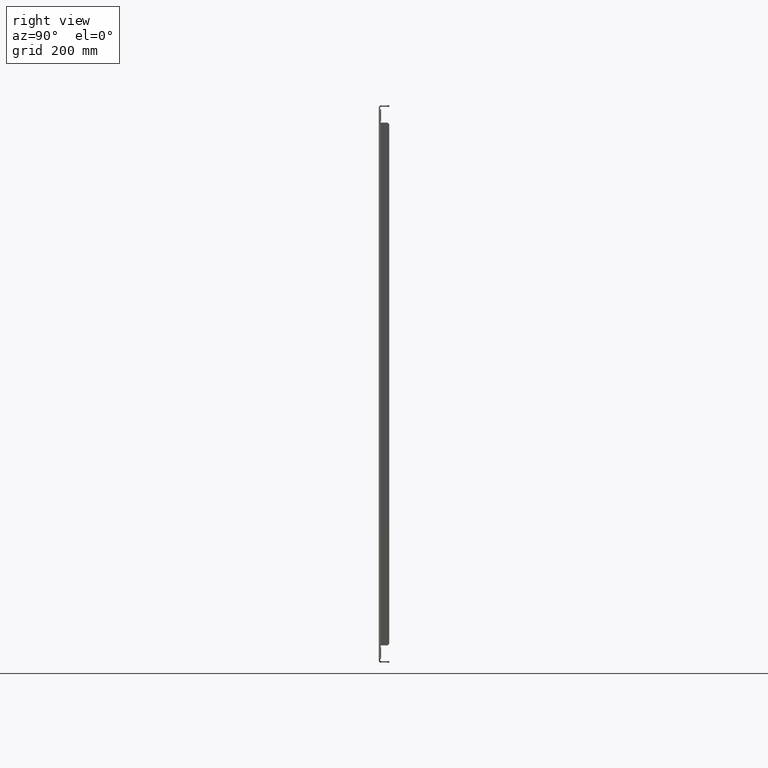
[diagram: clean part render]
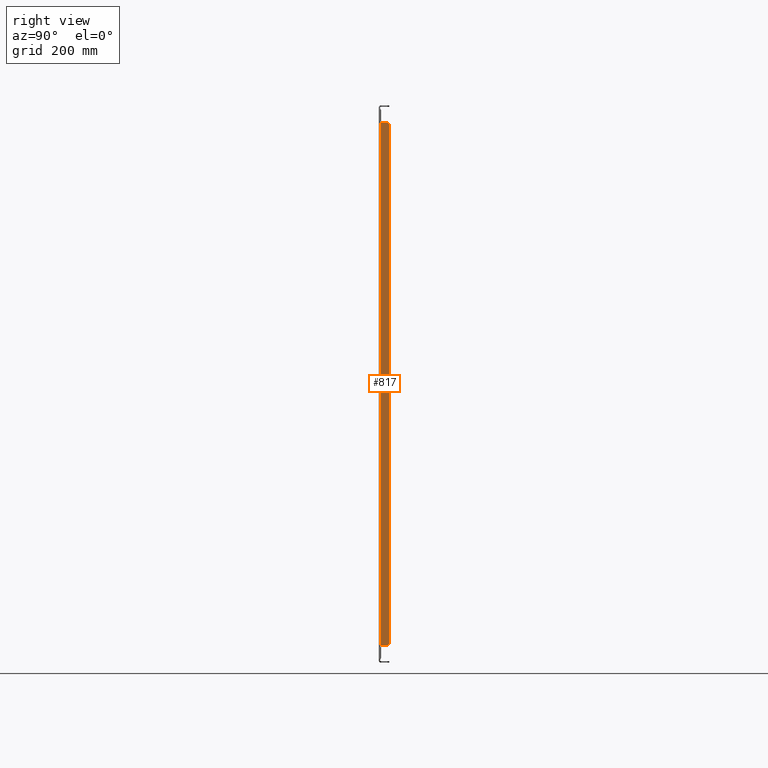
[diagram: same view with one face highlighted and labeled with its STEP entity id]
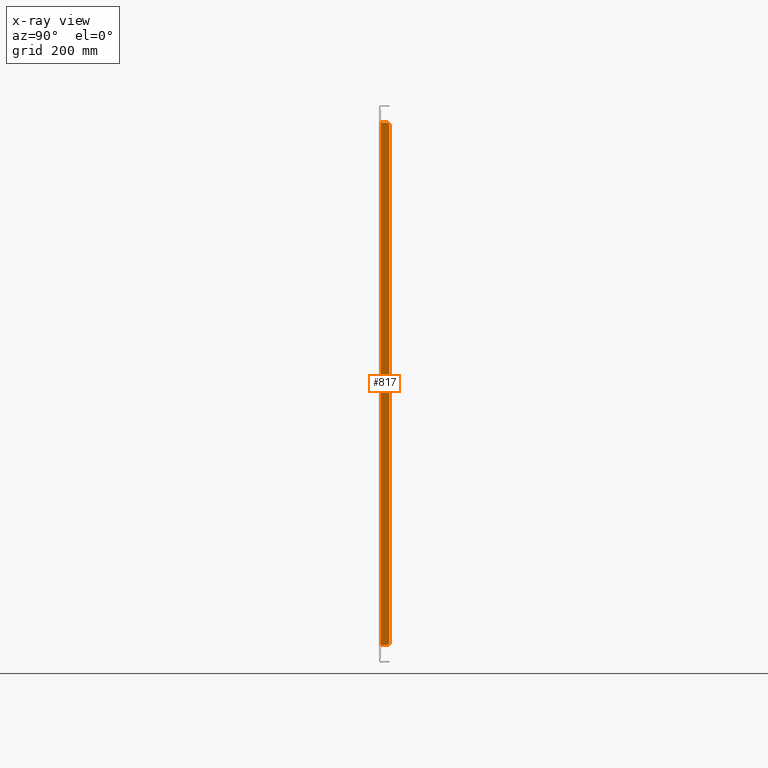
[diagram: x-ray of the same camera — body ghosted, the highlighted face saturated]
A machine part, right view. The second image highlights one B-rep face of the part: STEP entity #817.
The next image is the same camera in x-ray: the body ghosted, the highlighted face saturated — about 0% of this face is hidden behind the body in this view.
In plain terms, the highlighted planar face has unit normal (-1, 0, 0).
Its self-contained STEP definition (entity closure, byte-faithful):
#22 = DIRECTION ( 'NONE',  ( 0.0000000000000000000, 1.000000000000000000, 0.0000000000000000000 ) ) ;
#35 = PLANE ( 'NONE',  #636 ) ;
#249 = CARTESIAN_POINT ( 'NONE',  ( 17.08500000000000085, 0.6249999999999993339, -18.85000000000000142 ) ) ;
#378 = LINE ( 'NONE', #3371, #5585 ) ;
#547 = DIRECTION ( 'NONE',  ( 0.0000000000000000000, -1.000000000000000000, 0.0000000000000000000 ) ) ;
#636 = AXIS2_PLACEMENT_3D ( 'NONE', #2533, #4890, #4937 ) ;
#733 = CARTESIAN_POINT ( 'NONE',  ( 17.08500000000000085, 0.1710000000000005127, -18.85000000000000142 ) ) ;
#817 = ADVANCED_FACE ( 'NONE', ( #1196 ), #35, .F. ) ;
#942 = VERTEX_POINT ( 'NONE', #733 ) ;
#1131 = ORIENTED_EDGE ( 'NONE', *, *, #3554, .F. ) ;
#1141 = DIRECTION ( 'NONE',  ( -0.0000000000000000000, 0.7071067811865540120, 0.7071067811865410224 ) ) ;
#1196 = FACE_OUTER_BOUND ( 'NONE', #1845, .T. ) ;
#1434 = LINE ( 'NONE', #5477, #7877 ) ;
#1477 = DIRECTION ( 'NONE',  ( 0.0000000000000000000, 0.0000000000000000000, 1.000000000000000000 ) ) ;
#1741 = DIRECTION ( 'NONE',  ( -1.000000000000000000, 6.123031769111889989E-17, -0.0000000000000000000 ) ) ;
#1845 = EDGE_LOOP ( 'NONE', ( #1131, #3757, #6333, #2473, #3808, #6912, #3361, #3762 ) ) ;
#2073 = CARTESIAN_POINT ( 'NONE',  ( 17.08500000000000085, 0.7500000000000001110, 20.66399999999999793 ) ) ;
#2104 = VECTOR ( 'NONE', #1477, 39.37007874015748143 ) ;
#2271 = VECTOR ( 'NONE', #1141, 39.37007874015748143 ) ;
#2432 = CARTESIAN_POINT ( 'NONE',  ( 17.08500000000000085, 0.7500000000000001110, 18.72500000000000142 ) ) ;
#2473 = ORIENTED_EDGE ( 'NONE', *, *, #5714, .T. ) ;
#2533 = CARTESIAN_POINT ( 'NONE',  ( 17.08500000000000085, -34.57800000000000296, 20.66399999999999793 ) ) ;
#2564 = CIRCLE ( 'NONE', #4066, 0.06300000000000001432 ) ;
#2670 = CARTESIAN_POINT ( 'NONE',  ( 17.08500000000000085, 0.1710000000000005127, 18.85000000000000142 ) ) ;
#2695 = VERTEX_POINT ( 'NONE', #7671 ) ;
#2889 = EDGE_CURVE ( 'NONE', #2695, #942, #2564, .T. ) ;
#3009 = DIRECTION ( 'NONE',  ( -0.0000000000000000000, -1.000000000000000000, -0.0000000000000000000 ) ) ;
#3049 = CARTESIAN_POINT ( 'NONE',  ( 17.08500000000000085, 0.6249999999999925615, 18.85000000000000142 ) ) ;
#3077 = CARTESIAN_POINT ( 'NONE',  ( 17.08500000000000085, 0.7500000000000001110, -18.85000000000000142 ) ) ;
#3321 = DIRECTION ( 'NONE',  ( 0.0000000000000000000, -0.0000000000000000000, 1.000000000000000000 ) ) ;
#3361 = ORIENTED_EDGE ( 'NONE', *, *, #6446, .T. ) ;
#3371 = CARTESIAN_POINT ( 'NONE',  ( 17.08500000000000085, 0.1430000000000000437, -19.88800000000000168 ) ) ;
#3416 = DIRECTION ( 'NONE',  ( -1.000000000000000000, 6.123031769111889989E-17, -0.0000000000000000000 ) ) ;
#3417 = VECTOR ( 'NONE', #6129, 39.37007874015748854 ) ;
#3478 = CARTESIAN_POINT ( 'NONE',  ( 17.08500000000000085, 0.6249999999999983347, -18.85000000000000142 ) ) ;
#3554 = EDGE_CURVE ( 'NONE', #2695, #3574, #378, .T. ) ;
#3574 = VERTEX_POINT ( 'NONE', #4584 ) ;
#3611 = CARTESIAN_POINT ( 'NONE',  ( 17.08500000000000085, 0.7500000000000002220, -18.72500000000000142 ) ) ;
#3757 = ORIENTED_EDGE ( 'NONE', *, *, #2889, .T. ) ;
#3762 = ORIENTED_EDGE ( 'NONE', *, *, #4977, .T. ) ;
#3808 = ORIENTED_EDGE ( 'NONE', *, *, #6809, .T. ) ;
#4066 = AXIS2_PLACEMENT_3D ( 'NONE', #4745, #1741, #547 ) ;
#4262 = LINE ( 'NONE', #3478, #2271 ) ;
#4500 = DIRECTION ( 'NONE',  ( 0.0000000000000000000, -1.000000000000000000, 0.0000000000000000000 ) ) ;
#4584 = CARTESIAN_POINT ( 'NONE',  ( 17.08500000000000085, 0.1429999999999988503, 18.85656419576191922 ) ) ;
#4647 = LINE ( 'NONE', #2432, #3417 ) ;
#4745 = CARTESIAN_POINT ( 'NONE',  ( 17.08500000000000085, 0.1710000000000010123, -18.91300000000000026 ) ) ;
#4890 = DIRECTION ( 'NONE',  ( -1.000000000000000000, 6.123031769111889989E-17, 0.0000000000000000000 ) ) ;
#4937 = DIRECTION ( 'NONE',  ( -6.123031769111889989E-17, -1.000000000000000000, 0.0000000000000000000 ) ) ;
#4977 = EDGE_CURVE ( 'NONE', #6896, #3574, #6782, .T. ) ;
#5147 = AXIS2_PLACEMENT_3D ( 'NONE', #6454, #3416, #4500 ) ;
#5473 = VERTEX_POINT ( 'NONE', #6767 ) ;
#5477 = CARTESIAN_POINT ( 'NONE',  ( 17.08500000000000085, 0.1710000000000043430, 18.85000000000000142 ) ) ;
#5585 = VECTOR ( 'NONE', #3321, 39.37007874015748143 ) ;
#5714 = EDGE_CURVE ( 'NONE', #6863, #6632, #4262, .T. ) ;
#5990 = LINE ( 'NONE', #2073, #2104 ) ;
#6129 = DIRECTION ( 'NONE',  ( -0.0000000000000000000, -0.7071067811865474617, 0.7071067811865474617 ) ) ;
#6252 = VECTOR ( 'NONE', #22, 39.37007874015748143 ) ;
#6284 = EDGE_CURVE ( 'NONE', #942, #6863, #7407, .T. ) ;
#6333 = ORIENTED_EDGE ( 'NONE', *, *, #6284, .T. ) ;
#6446 = EDGE_CURVE ( 'NONE', #7200, #6896, #1434, .T. ) ;
#6454 = CARTESIAN_POINT ( 'NONE',  ( 17.08500000000000085, 0.1710000000000010123, 18.91300000000000026 ) ) ;
#6632 = VERTEX_POINT ( 'NONE', #3611 ) ;
#6767 = CARTESIAN_POINT ( 'NONE',  ( 17.08500000000000085, 0.7500000000000001110, 18.72500000000000142 ) ) ;
#6782 = CIRCLE ( 'NONE', #5147, 0.06300000000000001432 ) ;
#6809 = EDGE_CURVE ( 'NONE', #6632, #5473, #5990, .T. ) ;
#6863 = VERTEX_POINT ( 'NONE', #249 ) ;
#6896 = VERTEX_POINT ( 'NONE', #2670 ) ;
#6912 = ORIENTED_EDGE ( 'NONE', *, *, #7228, .T. ) ;
#7200 = VERTEX_POINT ( 'NONE', #3049 ) ;
#7228 = EDGE_CURVE ( 'NONE', #5473, #7200, #4647, .T. ) ;
#7407 = LINE ( 'NONE', #3077, #6252 ) ;
#7671 = CARTESIAN_POINT ( 'NONE',  ( 17.08500000000000085, 0.1429999999999984339, -18.85656419576191922 ) ) ;
#7877 = VECTOR ( 'NONE', #3009, 39.37007874015748143 ) ;